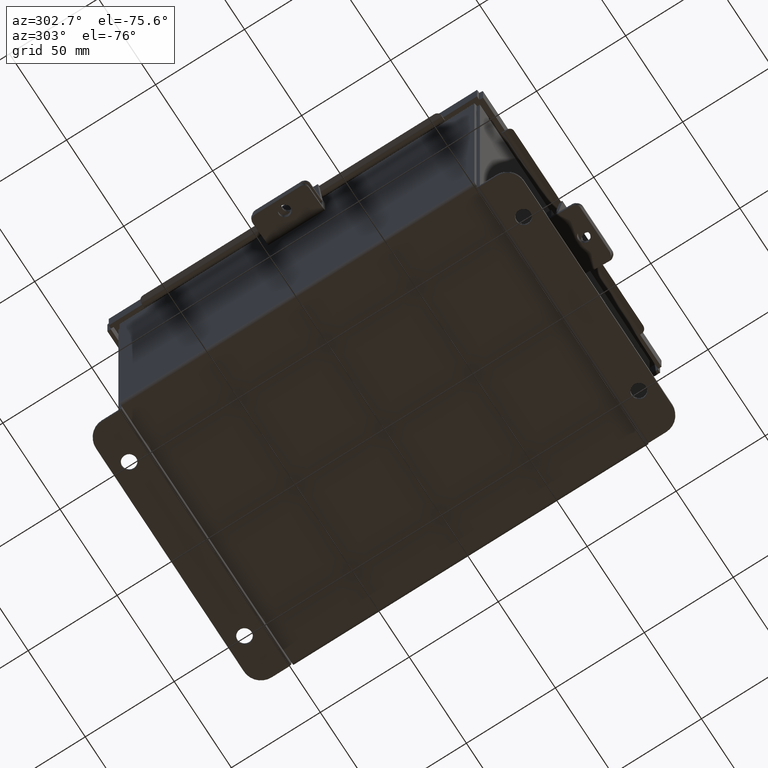
[diagram: clean part render]
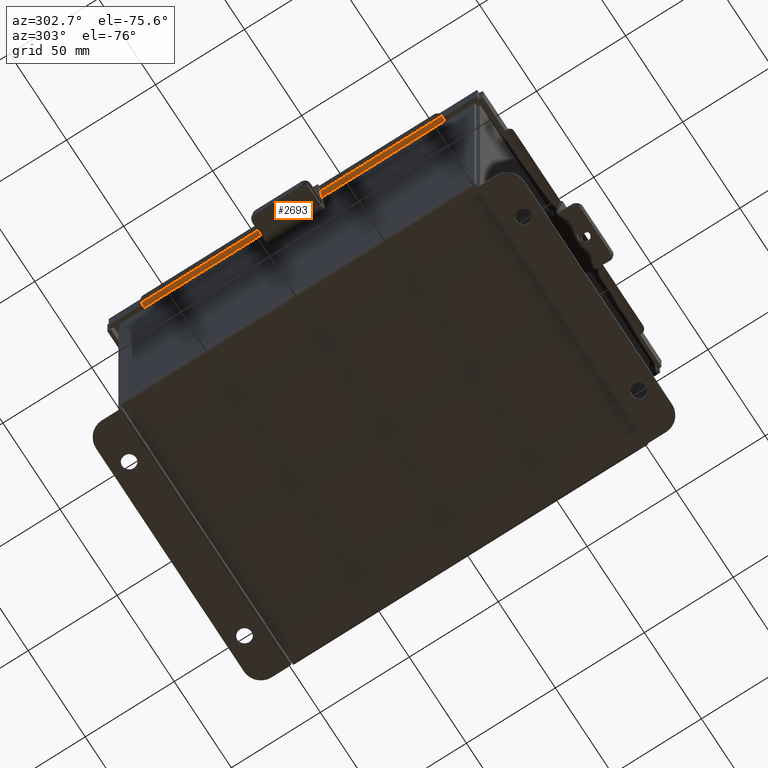
[diagram: same view with one face highlighted and labeled with its STEP entity id]
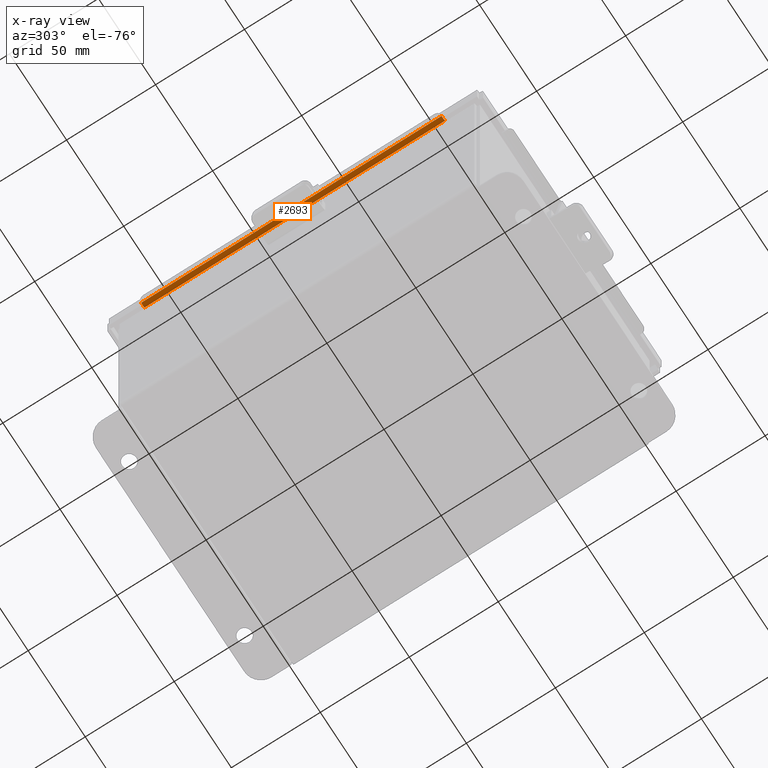
[diagram: x-ray of the same camera — body ghosted, the highlighted face saturated]
A machine part, auxiliary view. The second image highlights one B-rep face of the part: STEP entity #2693.
The next image is the same camera in x-ray: the body ghosted, the highlighted face saturated — about 0% of this face is hidden behind the body in this view.
In plain terms, the highlighted cylindrical surface (edge-blend (fillet) strip) has radius 2.126 mm, axis along (-0, -1, -0).
Its self-contained STEP definition (entity closure, byte-faithful):
#421 = VERTEX_POINT ( 'NONE', #5498 ) ;
#602 = EDGE_CURVE ( 'NONE', #3074, #2778, #5217, .T. ) ;
#692 = DIRECTION ( 'NONE',  ( 0.4999999999999994400, 0.0000000000000000000, 0.8660254037844389300 ) ) ;
#844 = CARTESIAN_POINT ( 'NONE',  ( 3.081550000000003100, -3.324478932188134300, 0.4717115427318795400 ) ) ;
#980 = AXIS2_PLACEMENT_3D ( 'NONE', #1419, #5148, #692 ) ;
#1187 = EDGE_LOOP ( 'NONE', ( #8210, #7863, #4428, #3127, #3743, #2624 ) ) ;
#1386 = AXIS2_PLACEMENT_3D ( 'NONE', #3399, #8538, #4139 ) ;
#1419 = CARTESIAN_POINT ( 'NONE',  ( 3.165250000000003000, -3.324478932188134300, 0.4717115427318795400 ) ) ;
#1656 = DIRECTION ( 'NONE',  ( 0.0000000000000000000, 1.000000000000000000, 0.0000000000000000000 ) ) ;
#1780 = EDGE_CURVE ( 'NONE', #421, #7276, #3306, .T. ) ;
#2204 = LINE ( 'NONE', #3297, #4648 ) ;
#2624 = ORIENTED_EDGE ( 'NONE', *, *, #5246, .F. ) ;
#2693 = ADVANCED_FACE ( 'NONE', ( #6371 ), #7252, .T. ) ;
#2778 = VERTEX_POINT ( 'NONE', #8108 ) ;
#2832 = CIRCLE ( 'NONE', #1386, 0.08370000000000019100 ) ;
#2996 = DIRECTION ( 'NONE',  ( -0.0000000000000000000, -1.000000000000000000, -0.0000000000000000000 ) ) ;
#3074 = VERTEX_POINT ( 'NONE', #7053 ) ;
#3127 = ORIENTED_EDGE ( 'NONE', *, *, #7257, .T. ) ;
#3292 = VERTEX_POINT ( 'NONE', #4603 ) ;
#3297 = CARTESIAN_POINT ( 'NONE',  ( 3.207100000000003200, 2.058723782678148100E-016, 0.5441978690286380900 ) ) ;
#3306 = CIRCLE ( 'NONE', #8047, 0.08370000000000019100 ) ;
#3399 = CARTESIAN_POINT ( 'NONE',  ( 3.165250000000003000, -3.324478932188134300, 0.4717115427318795400 ) ) ;
#3424 = VERTEX_POINT ( 'NONE', #7628 ) ;
#3743 = ORIENTED_EDGE ( 'NONE', *, *, #1780, .F. ) ;
#4022 = DIRECTION ( 'NONE',  ( 0.0000000000000000000, 1.000000000000000000, 0.0000000000000000000 ) ) ;
#4033 = DIRECTION ( 'NONE',  ( -7.116452863888743000E-017, 1.000000000000000000, 4.108685976641457400E-017 ) ) ;
#4139 = DIRECTION ( 'NONE',  ( 0.0000000000000000000, 0.0000000000000000000, -1.000000000000000000 ) ) ;
#4428 = ORIENTED_EDGE ( 'NONE', *, *, #7781, .F. ) ;
#4603 = CARTESIAN_POINT ( 'NONE',  ( 3.207100000000003600, -3.324478932188134300, 0.5441978690286377600 ) ) ;
#4648 = VECTOR ( 'NONE', #4033, 39.37007874015748100 ) ;
#4971 = AXIS2_PLACEMENT_3D ( 'NONE', #8422, #4022, #9164 ) ;
#5148 = DIRECTION ( 'NONE',  ( -0.0000000000000000000, -1.000000000000000000, -0.0000000000000000000 ) ) ;
#5217 = LINE ( 'NONE', #844, #6139 ) ;
#5246 = EDGE_CURVE ( 'NONE', #2778, #421, #7470, .T. ) ;
#5395 = AXIS2_PLACEMENT_3D ( 'NONE', #7365, #2996, #8112 ) ;
#5498 = CARTESIAN_POINT ( 'NONE',  ( 3.083014423757114200, 3.324478932188137400, 0.4873000000000002300 ) ) ;
#5912 = CIRCLE ( 'NONE', #5395, 0.08370000000000019100 ) ;
#6060 = CARTESIAN_POINT ( 'NONE',  ( 3.165250000000003000, 3.324478932188137400, 0.4717115427318795400 ) ) ;
#6139 = VECTOR ( 'NONE', #8951, 39.37007874015748100 ) ;
#6371 = FACE_OUTER_BOUND ( 'NONE', #1187, .T. ) ;
#6777 = DIRECTION ( 'NONE',  ( 0.0000000000000000000, 0.0000000000000000000, -1.000000000000000000 ) ) ;
#7053 = CARTESIAN_POINT ( 'NONE',  ( 3.081550000000002700, -3.324478932188134300, 0.4717115427318798200 ) ) ;
#7252 = CYLINDRICAL_SURFACE ( 'NONE', #980, 0.08370000000000008000 ) ;
#7257 = EDGE_CURVE ( 'NONE', #3292, #7276, #2204, .T. ) ;
#7276 = VERTEX_POINT ( 'NONE', #9176 ) ;
#7365 = CARTESIAN_POINT ( 'NONE',  ( 3.165250000000003000, -3.324478932188134300, 0.4717115427318795400 ) ) ;
#7470 = CIRCLE ( 'NONE', #4971, 0.08370000000000019100 ) ;
#7628 = CARTESIAN_POINT ( 'NONE',  ( 3.083014423757114200, -3.324478932188134300, 0.4872999999999996200 ) ) ;
#7781 = EDGE_CURVE ( 'NONE', #3292, #3424, #5912, .T. ) ;
#7863 = ORIENTED_EDGE ( 'NONE', *, *, #8778, .F. ) ;
#8047 = AXIS2_PLACEMENT_3D ( 'NONE', #6060, #1656, #6777 ) ;
#8108 = CARTESIAN_POINT ( 'NONE',  ( 3.081550000000002700, 3.324478932188137400, 0.4717115427318795400 ) ) ;
#8112 = DIRECTION ( 'NONE',  ( 0.0000000000000000000, 0.0000000000000000000, -1.000000000000000000 ) ) ;
#8210 = ORIENTED_EDGE ( 'NONE', *, *, #602, .F. ) ;
#8422 = CARTESIAN_POINT ( 'NONE',  ( 3.165250000000003000, 3.324478932188137400, 0.4717115427318795400 ) ) ;
#8538 = DIRECTION ( 'NONE',  ( -0.0000000000000000000, -1.000000000000000000, -0.0000000000000000000 ) ) ;
#8778 = EDGE_CURVE ( 'NONE', #3424, #3074, #2832, .T. ) ;
#8951 = DIRECTION ( 'NONE',  ( 0.0000000000000000000, 1.000000000000000000, 0.0000000000000000000 ) ) ;
#9164 = DIRECTION ( 'NONE',  ( -6.527713246509574400E-015, 0.0000000000000000000, -1.000000000000000000 ) ) ;
#9176 = CARTESIAN_POINT ( 'NONE',  ( 3.207100000000001800, 3.324478932188137400, 0.5441978690286377600 ) ) ;